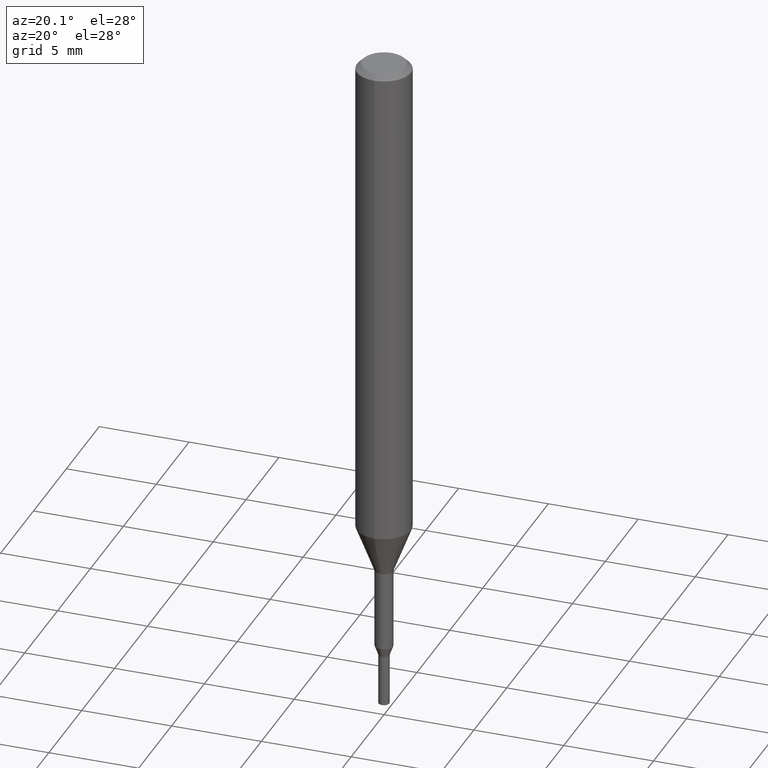
[diagram: clean part render]
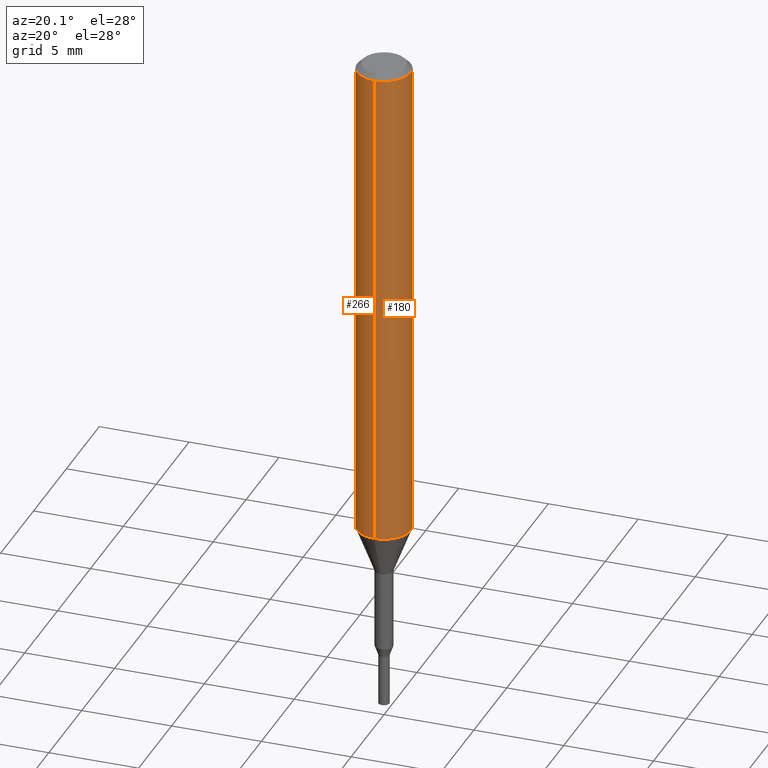
[diagram: same view with one multi-face feature highlighted, each face labeled with its STEP entity id]
A machine part, auxiliary view. The highlighted faces form ONE feature: a constant-radius fillet chain: 2 tangent blend faces with common blend radius 1.5 mm. The faces share edges in the B-rep.
Their STEP definitions:
[1] entity #180 (Cylinder):
#130=EDGE_CURVE('',#200,#258,#310,.T.);
#148=EDGE_CURVE('',#182,#258,#329,.T.);
#180=ADVANCED_FACE('',(#365),#366,.T.);
#182=VERTEX_POINT('',#368);
#184=VERTEX_POINT('',#370);
#200=VERTEX_POINT('',#387);
#222=EDGE_CURVE('',#184,#200,#413,.T.);
#226=EDGE_CURVE('',#182,#184,#417,.T.);
#258=VERTEX_POINT('',#453);
#310=LINE('',#508,#509);
#329=CIRCLE('',#535,1.5);
#365=FACE_OUTER_BOUND('',#581,.T.);
#366=CYLINDRICAL_SURFACE('',#582,1.5);
#368=CARTESIAN_POINT('',(0.0,1.5,-0.300000000000001));
#370=CARTESIAN_POINT('',(0.0,1.5,-27.395));
#387=CARTESIAN_POINT('',(1.83690953073357E-016,-1.5,-27.395));
#413=CIRCLE('',#639,1.5);
#417=LINE('',#646,#647);
#453=CARTESIAN_POINT('',(1.83690953073357E-016,-1.5,-0.300000000000001));
#508=CARTESIAN_POINT('',(1.83690953073357E-016,-1.5,-13.8475));
#509=VECTOR('',#743,1.0);
#535=AXIS2_PLACEMENT_3D('',#758,#759,#760);
#581=EDGE_LOOP('',(#803,#804,#805,#806));
#582=AXIS2_PLACEMENT_3D('',#807,#808,#809);
#639=AXIS2_PLACEMENT_3D('',#861,#862,#863);
#646=CARTESIAN_POINT('',(-1.83690953073357E-016,1.5,-13.8475));
#647=VECTOR('',#865,1.0);
#743=DIRECTION('',(-0.0,-0.0,1.0));
#758=CARTESIAN_POINT('',(0.0,0.0,-0.300000000000001));
#759=DIRECTION('',(0.0,0.0,-1.0));
#760=DIRECTION('',(0.0,1.0,0.0));
#803=ORIENTED_EDGE('',*,*,#226,.F.);
#804=ORIENTED_EDGE('',*,*,#148,.T.);
#805=ORIENTED_EDGE('',*,*,#130,.F.);
#806=ORIENTED_EDGE('',*,*,#222,.F.);
#807=CARTESIAN_POINT('',(0.0,0.0,-13.8475));
#808=DIRECTION('',(-0.0,-0.0,1.0));
#809=DIRECTION('',(0.0,1.0,0.0));
#861=CARTESIAN_POINT('',(0.0,0.0,-27.395));
#862=DIRECTION('',(0.0,0.0,-1.0));
#863=DIRECTION('',(0.0,1.0,0.0));
#865=DIRECTION('',(0.0,0.0,-1.0));
[2] entity #266 (Cylinder):
#130=EDGE_CURVE('',#200,#258,#310,.T.);
#182=VERTEX_POINT('',#368);
#184=VERTEX_POINT('',#370);
#200=VERTEX_POINT('',#387);
#226=EDGE_CURVE('',#182,#184,#417,.T.);
#232=EDGE_CURVE('',#200,#184,#423,.T.);
#248=EDGE_CURVE('',#258,#182,#440,.T.);
#258=VERTEX_POINT('',#453);
#266=ADVANCED_FACE('',(#463),#464,.T.);
#310=LINE('',#508,#509);
#368=CARTESIAN_POINT('',(0.0,1.5,-0.300000000000001));
#370=CARTESIAN_POINT('',(0.0,1.5,-27.395));
#387=CARTESIAN_POINT('',(1.83690953073357E-016,-1.5,-27.395));
#417=LINE('',#646,#647);
#423=CIRCLE('',#656,1.5);
#440=CIRCLE('',#679,1.5);
#453=CARTESIAN_POINT('',(1.83690953073357E-016,-1.5,-0.300000000000001));
#463=FACE_OUTER_BOUND('',#704,.T.);
#464=CYLINDRICAL_SURFACE('',#705,1.5);
#508=CARTESIAN_POINT('',(1.83690953073357E-016,-1.5,-13.8475));
#509=VECTOR('',#743,1.0);
#646=CARTESIAN_POINT('',(-1.83690953073357E-016,1.5,-13.8475));
#647=VECTOR('',#865,1.0);
#656=AXIS2_PLACEMENT_3D('',#872,#873,#874);
#679=AXIS2_PLACEMENT_3D('',#888,#889,#890);
#704=EDGE_LOOP('',(#930,#931,#932,#933));
#705=AXIS2_PLACEMENT_3D('',#934,#935,#936);
#743=DIRECTION('',(-0.0,-0.0,1.0));
#865=DIRECTION('',(0.0,0.0,-1.0));
#872=CARTESIAN_POINT('',(0.0,0.0,-27.395));
#873=DIRECTION('',(0.0,0.0,-1.0));
#874=DIRECTION('',(0.0,1.0,0.0));
#888=CARTESIAN_POINT('',(0.0,0.0,-0.300000000000001));
#889=DIRECTION('',(0.0,0.0,-1.0));
#890=DIRECTION('',(0.0,1.0,0.0));
#930=ORIENTED_EDGE('',*,*,#226,.T.);
#931=ORIENTED_EDGE('',*,*,#232,.F.);
#932=ORIENTED_EDGE('',*,*,#130,.T.);
#933=ORIENTED_EDGE('',*,*,#248,.T.);
#934=CARTESIAN_POINT('',(0.0,0.0,-13.8475));
#935=DIRECTION('',(-0.0,-0.0,1.0));
#936=DIRECTION('',(0.0,1.0,0.0));